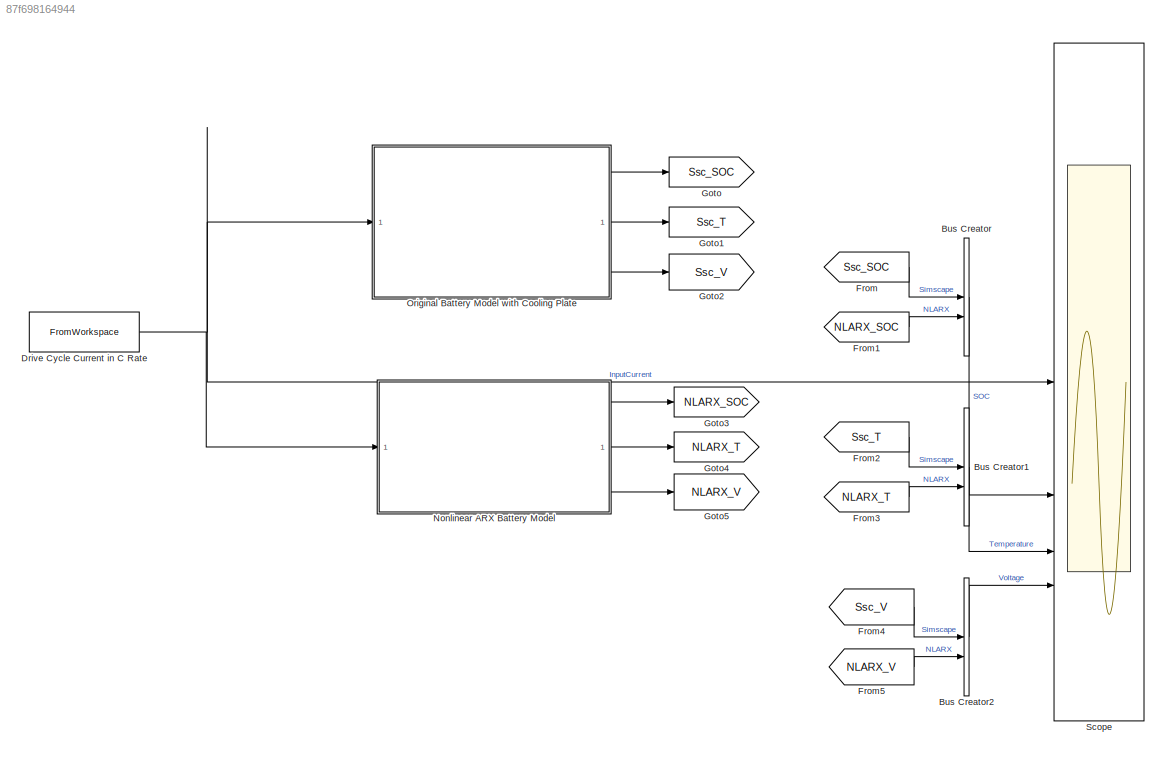
MODEL slx_87f698164944
KIND model
CONFIG AbsTol = auto
CONFIG EnableMultiTasking = off
CONFIG FixedStep = 0.1
CONFIG MaxStep = auto
CONFIG MinStep = auto
CONFIG PreLoadFcn = % Load parameters\nload ModelData.mat;\n\n% Load an independent current profile\nload Artemis150mphCurrent_TS.mat;\n\n% Load trained NLARX model\nload NLARXModel.mat; \n
CONFIG RelTol = 1e-3
CONFIG SampleTimeConstraint = Unconstrained
CONFIG SolverName = VariableStepAuto
CONFIG StartTime = 0.0
CONFIG StopTime = 1068
BLOCK [BusCreator] Bus Creator
  DisplayOption = bar
  InheritFromInputs = on
  Inputs = 2
BLOCK [BusCreator] Bus Creator1
  DisplayOption = bar
  InheritFromInputs = on
  Inputs = 2
BLOCK [BusCreator] Bus Creator2
  DisplayOption = bar
  InheritFromInputs = on
  Inputs = 2
BLOCK [FromWorkspace] Drive Cycle Current in C Rate
  VariableName = battpackcurrent
BLOCK [From] From
  GotoTag = Ssc_SOC
BLOCK [From] From1
  GotoTag = NLARX_SOC
BLOCK [From] From2
  GotoTag = Ssc_T
BLOCK [From] From3
  GotoTag = NLARX_T
BLOCK [From] From4
  GotoTag = Ssc_V
BLOCK [From] From5
  GotoTag = NLARX_V
BLOCK [Goto] Goto
  GotoTag = Ssc_SOC
BLOCK [Goto] Goto1
  GotoTag = Ssc_T
BLOCK [Goto] Goto2
  GotoTag = Ssc_V
BLOCK [Goto] Goto3
  GotoTag = NLARX_SOC
BLOCK [Goto] Goto4
  GotoTag = NLARX_T
BLOCK [Goto] Goto5
  GotoTag = NLARX_V
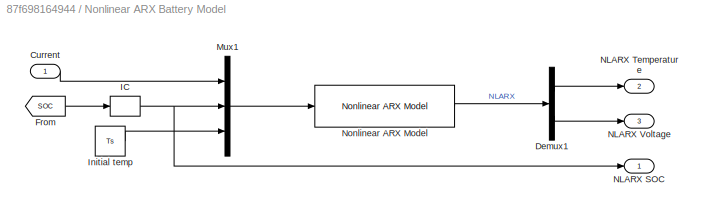
BLOCK [SubSystem] Nonlinear ARX Battery Model
BLOCK [Inport] Nonlinear ARX Battery Model/Current
BLOCK [Demux] Nonlinear ARX Battery Model/Demux1
  Outputs = 2
BLOCK [From] Nonlinear ARX Battery Model/From
  GotoTag = SOC
  TagVisibility = global
BLOCK [InitialCondition] Nonlinear ARX Battery Model/IC
  Value = SOCs
BLOCK [Constant] Nonlinear ARX Battery Model/Initial temp
  Value = Ts
BLOCK [Mux] Nonlinear ARX Battery Model/Mux1
  DisplayOption = bar
  Inputs = 3
BLOCK [Outport] Nonlinear ARX Battery Model/NLARX SOC
BLOCK [Outport] Nonlinear ARX Battery Model/NLARX Temperature
  Port = 2
BLOCK [Outport] Nonlinear ARX Battery Model/NLARX Voltage
  Port = 3
BLOCK [Reference] Nonlinear ARX Battery Model/Nonlinear ARX Model  REF=slident/Models/Nonlinear ARX Model  (lib defined in mdl_f7d4911ca73a)
  SourceBlock = slident/Models/Nonlinear ARX Model
  SourceType = Nonlinear ARX Model
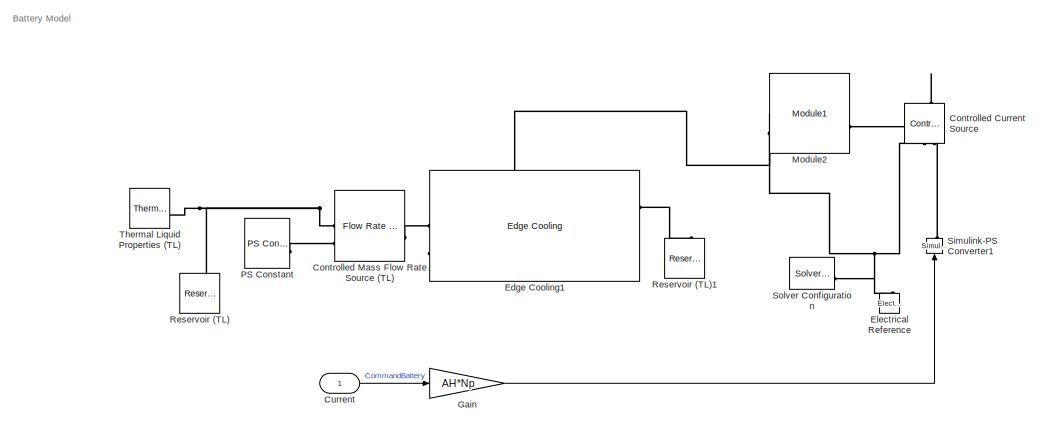
[diagram: Original Battery Model with Cooling Plate - part 1/2, left side, full height]
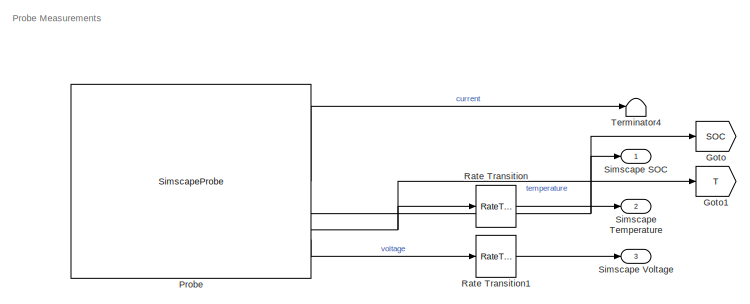
[diagram: Original Battery Model with Cooling Plate - part 2/2, middle right region]
BLOCK [SubSystem] Original Battery Model with Cooling Plate
BLOCK [Reference] Original Battery Model with Cooling Plate/Controlled Current Source  REF=fl_lib/Electrical/Electrical Sources/Controlled Current
Source
  NameLocation = right
  SourceBlock = fl_lib/Electrical/Electrical Sources/Controlled Current\nSource
  SourceType = Controlled Current\nSource
BLOCK [Reference] Original Battery Model with Cooling Plate/Controlled Mass Flow Rate Source (TL)  REF=fl_lib/Thermal Liquid/Sources/Flow Rate Source
(TL)
  SourceBlock = fl_lib/Thermal Liquid/Sources/Flow Rate Source\n(TL)
  SourceType = Flow Rate Source\n(TL)
BLOCK [Inport] Original Battery Model with Cooling Plate/Current
BLOCK [Reference] Original Battery Model with Cooling Plate/Edge Cooling1  REF=batt_lib/Thermal/Edge Cooling
  SourceBlock = batt_lib/Thermal/Edge Cooling
  SourceType = Edge Cooling
BLOCK [Reference] Original Battery Model with Cooling Plate/Electrical Reference  REF=fl_lib/Electrical/Electrical Elements/Electrical Reference
  NameLocation = right
  SourceBlock = fl_lib/Electrical/Electrical Elements/Electrical Reference
  SourceType = Electrical Reference
BLOCK [Gain] Original Battery Model with Cooling Plate/Gain
  Gain = AH*Np
  NameLocation = top
BLOCK [Goto] Original Battery Model with Cooling Plate/Goto
  GotoTag = SOC
  TagVisibility = global
BLOCK [Goto] Original Battery Model with Cooling Plate/Goto1
  GotoTag = T
  TagVisibility = global
BLOCK [Reference] Original Battery Model with Cooling Plate/Module2  REF=moduleExample_lib/Module1
  SourceBlock = moduleExample_lib/Module1
  SourceType = Module1
BLOCK [Reference] Original Battery Model with Cooling Plate/PS Constant  REF=fl_lib/Physical Signals/Sources/PS Constant
  SourceBlock = fl_lib/Physical Signals/Sources/PS Constant
  SourceType = PS Constant
BLOCK [SimscapeProbe] Original Battery Model with Cooling Plate/Probe
  BoundBlock = 68
  Variables = {iCellModel, socCellModel, temperatureCellModel, vCellModel}
BLOCK [RateTransition] Original Battery Model with Cooling Plate/Rate Transition
  InitialCondition = Ts
  OutPortSampleTime = 0.1
BLOCK [RateTransition] Original Battery Model with Cooling Plate/Rate Transition1
  InitialCondition = 38
  OutPortSampleTime = 0.1
BLOCK [Reference] Original Battery Model with Cooling Plate/Reservoir (TL)  REF=fl_lib/Thermal Liquid/Elements/Reservoir (TL)
  NameLocation = right
  SourceBlock = fl_lib/Thermal Liquid/Elements/Reservoir (TL)
  SourceType = Reservoir (TL)
BLOCK [Reference] Original Battery Model with Cooling Plate/Reservoir (TL)1  REF=fl_lib/Thermal Liquid/Elements/Reservoir (TL)
  NameLocation = right
  SourceBlock = fl_lib/Thermal Liquid/Elements/Reservoir (TL)
  SourceType = Reservoir (TL)
BLOCK [Outport] Original Battery Model with Cooling Plate/Simscape SOC
BLOCK [Outport] Original Battery Model with Cooling Plate/Simscape Temperature
  Port = 2
BLOCK [Outport] Original Battery Model with Cooling Plate/Simscape Voltage
  Port = 3
BLOCK [Reference] Original Battery Model with Cooling Plate/Simulink-PS Converter1  REF=nesl_utility/Simulink-PS
Converter
  NameLocation = right
  SourceBlock = nesl_utility/Simulink-PS\nConverter
  SourceType = Simulink-PS\nConverter
BLOCK [Reference] Original Battery Model with Cooling Plate/Solver Configuration  REF=nesl_utility/Solver
Configuration
  SourceBlock = nesl_utility/Solver\nConfiguration
  SourceType = Solver\nConfiguration
BLOCK [Terminator] Original Battery Model with Cooling Plate/Terminator4
BLOCK [Reference] Original Battery Model with Cooling Plate/Thermal Liquid Properties (TL)  REF=SimscapeFluids_lib/Thermal Liquid/Utilities/Thermal Liquid
Properties (TL)
  SourceBlock = SimscapeFluids_lib/Thermal Liquid/Utilities/Thermal Liquid\nProperties (TL)
  SourceType = Thermal Liquid\nProperties (TL)
BLOCK [Scope] Scope
  ActiveDisplayYMaximum = 1.50278
  ActiveDisplayYMinimum = -1.89587
  Floating = off
  GraphicalSettings = {"GraphicalSettings":{"LegacySettings":true,"Style":{"AxesScalingProperties":{"ScaleAxesLimitsAtStop":false},"Style":{"AxesColor":"[0 0 0]","ChannelNames":["","","",""],"ColorOrder":"[1 0.909803921568627 0.392156862745098;0.149019607843137 0.549019607843137 0.866666666666667;0.96078431372549 0.466666666666667 0.16078431372549;0.286274509803922 0.858823529411765 0.250980392156863;0.752941176470588 ...<+801ch>
  LayoutDimensionsString = [2 2]
  MultipleDisplayCache = [{"MaxYLimMag":1.89587,"MaxYLimReal":1.50278,"MinYLimMag":0,"MinYLimReal":-1.89587,"PlotAsMagnitudePhase":false,"ShowGrid":true,"ShowLegend":true,"Title":"%<SignalLabel>","YLabel":""},{"MaxYLimMag":321.01454,"MaxYLimReal":0.51409,"MinYLimMag":0,"MinYLimReal":0.37316,"PlotAsMagnitudePhase":false,"ShowGrid":true,"ShowLegend":true,"Title":"%<SignalLabel>","YLabel":""},{"MaxYLimMag":321.01454,"MaxYLim...<+342ch>
  NumInputPorts = 4
  OpenAtSimulationStart = on
  ScopeFrameLocation = window
  ShowLegend = on
  WasSavedAsWebScope = on
  WindowPosition = [488.000000,270.000000,560.000000,420.000000,]
ANNOTATION Original Battery Model with Cooling Plate: Battery Model
ANNOTATION Original Battery Model with Cooling Plate: Probe Measurements
LINE Bus Creator1:1 -> Scope:3
LINE Bus Creator2:1 -> Scope:4
LINE Bus Creator:1 -> Scope:2
NET Drive Cycle Current in C Rate:1 -> Nonlinear ARX Battery Model:1, Original Battery Model with Cooling Plate:1, Scope:1
LINE From1:1 -> Bus Creator:2
LINE From2:1 -> Bus Creator1:1
LINE From3:1 -> Bus Creator1:2
LINE From4:1 -> Bus Creator2:1
LINE From5:1 -> Bus Creator2:2
LINE From:1 -> Bus Creator:1
LINE Nonlinear ARX Battery Model/Current:1 -> Nonlinear ARX Battery Model/Mux1:1
LINE Nonlinear ARX Battery Model/Demux1:1 -> Nonlinear ARX Battery Model/NLARX Temperature:1
LINE Nonlinear ARX Battery Model/Demux1:2 -> Nonlinear ARX Battery Model/NLARX Voltage:1
LINE Nonlinear ARX Battery Model/From:1 -> Nonlinear ARX Battery Model/IC:1
NET Nonlinear ARX Battery Model/IC:1 -> Nonlinear ARX Battery Model/Mux1:2, Nonlinear ARX Battery Model/NLARX SOC:1
LINE Nonlinear ARX Battery Model/Initial temp:1 -> Nonlinear ARX Battery Model/Mux1:3
LINE Nonlinear ARX Battery Model/Mux1:1 -> Nonlinear ARX Battery Model/Nonlinear ARX Model:1
LINE Nonlinear ARX Battery Model/Nonlinear ARX Model:1 -> Nonlinear ARX Battery Model/Demux1:1
LINE Nonlinear ARX Battery Model:1 -> Goto3:1
LINE Nonlinear ARX Battery Model:2 -> Goto4:1
LINE Nonlinear ARX Battery Model:3 -> Goto5:1
LINE Original Battery Model with Cooling Plate/Current:1 -> Original Battery Model with Cooling Plate/Gain:1
LINE Original Battery Model with Cooling Plate/Gain:1 -> Original Battery Model with Cooling Plate/Simulink-PS Converter1:1
LINE Original Battery Model with Cooling Plate/Probe:1 -> Original Battery Model with Cooling Plate/Terminator4:1
NET Original Battery Model with Cooling Plate/Probe:2 -> Original Battery Model with Cooling Plate/Goto:1, Original Battery Model with Cooling Plate/Simscape SOC:1
NET Original Battery Model with Cooling Plate/Probe:3 -> Original Battery Model with Cooling Plate/Goto1:1, Original Battery Model with Cooling Plate/Rate Transition:1
LINE Original Battery Model with Cooling Plate/Probe:4 -> Original Battery Model with Cooling Plate/Rate Transition1:1
LINE Original Battery Model with Cooling Plate/Rate Transition1:1 -> Original Battery Model with Cooling Plate/Simscape Voltage:1
LINE Original Battery Model with Cooling Plate/Rate Transition:1 -> Original Battery Model with Cooling Plate/Simscape Temperature:1
LINE Original Battery Model with Cooling Plate:1 -> Goto:1
LINE Original Battery Model with Cooling Plate:2 -> Goto1:1
LINE Original Battery Model with Cooling Plate:3 -> Goto2:1
PLINE Original Battery Model with Cooling Plate/Controlled Current Source:LConn1 -- Original Battery Model with Cooling Plate/Module2:LConn1
PLINE Original Battery Model with Cooling Plate/Controlled Current Source:RConn1 -- Original Battery Model with Cooling Plate/Simulink-PS Converter1:RConn1
PNET net1: Original Battery Model with Cooling Plate/Controlled Current Source:RConn2 -- Original Battery Model with Cooling Plate/Electrical Reference:LConn1 -- Original Battery Model with Cooling Plate/Module2:RConn1 -- Original Battery Model with Cooling Plate/Solver Configuration:RConn1
PNET net2: Original Battery Model with Cooling Plate/Controlled Mass Flow Rate Source (TL):LConn1 -- Original Battery Model with Cooling Plate/Reservoir (TL):LConn1 -- Original Battery Model with Cooling Plate/Thermal Liquid Properties (TL):RConn1
PLINE Original Battery Model with Cooling Plate/Controlled Mass Flow Rate Source (TL):LConn2 -- Original Battery Model with Cooling Plate/PS Constant:RConn1
PLINE Original Battery Model with Cooling Plate/Controlled Mass Flow Rate Source (TL):RConn1 -- Original Battery Model with Cooling Plate/Edge Cooling1:LConn1
PLINE Original Battery Model with Cooling Plate/Edge Cooling1:LConn2 -- Original Battery Model with Cooling Plate/Module2:RConn2
PLINE Original Battery Model with Cooling Plate/Edge Cooling1:RConn1 -- Original Battery Model with Cooling Plate/Reservoir (TL)1:LConn1
note: NET lines group one-source signal fan-out (src -> all destinations, sorted); 1:1 wires keep LINE; PNET lines group multi-terminal physical nets as a canonical sorted terminal list (undirected conserving connections); 2-terminal nets keep the pairwise PLINE form
